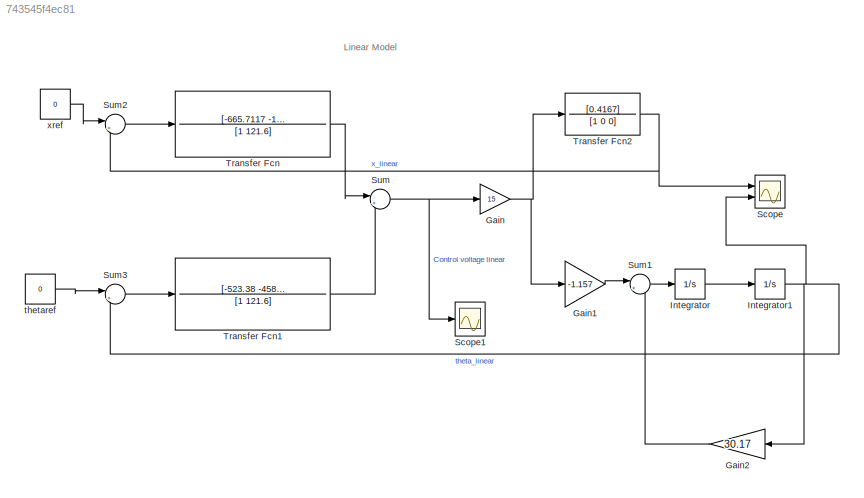
MODEL slx_743545f4ec81
KIND model
CONFIG AbsTol = auto
CONFIG EnableMultiTasking = off
CONFIG FixedStep = auto
CONFIG MaxStep = auto
CONFIG MinStep = auto
CONFIG RelTol = 1e-3
CONFIG SampleTimeConstraint = Unconstrained
CONFIG SolverName = VariableStepAuto
CONFIG StartTime = 0.0
CONFIG StopTime = 10.0
BLOCK [Gain] Gain
  Gain = 15
BLOCK [Gain] Gain1
  Gain = -1.157
BLOCK [Gain] Gain2
  Gain = 30.17
BLOCK [Integrator] Integrator
  Ports = [1, 1]
BLOCK [Integrator] Integrator1
  InitialCondition = 0.15
  Ports = [1, 1]
BLOCK [Scope] Scope
  Floating = off
  NumInputPorts = 2
  Ports = [2]
  ScopeSpecificationString = Simulink.scopes.TimeScopeBlockCfg('CurrentConfiguration', extmgr.ConfigurationSet(extmgr.Configuration('Core','General UI',true,'FigureColor',[1 1 1]),extmgr.Configuration('Core','Source UI',true),extmgr.Configuration('Sources','WiredSimulink',true,'DataLoggingVariableName','ScopeData1'),extmgr.Configuration('Visuals','Time Domain',true,'SerializedDisplays',{struct('MinYLimReal','-0.04104','MaxYLi...<+2217ch>
BLOCK [Scope] Scope1
  Floating = off
  NumInputPorts = 1
  Ports = [1]
  ScopeSpecificationString = Simulink.scopes.TimeScopeBlockCfg('CurrentConfiguration', extmgr.ConfigurationSet(extmgr.Configuration('Core','General UI',true,'FigureColor',[1 1 1]),extmgr.Configuration('Core','Source UI',true),extmgr.Configuration('Sources','WiredSimulink',true,'DataLoggingVariableName','ScopeData1'),extmgr.Configuration('Visuals','Time Domain',true,'SerializedDisplays',{struct('MinYLimReal','-25.86536','MaxYL...<+1802ch>
BLOCK [Sum] Sum
  Inputs = |++
  Ports = [2, 1]
BLOCK [Sum] Sum1
  Inputs = |++
  Ports = [2, 1]
BLOCK [Sum] Sum2
  Inputs = |+-
  Ports = [2, 1]
BLOCK [Sum] Sum3
  Inputs = |+-
  Ports = [2, 1]
BLOCK [TransferFcn] Transfer Fcn
  Denominator = [1 121.6]
  Numerator = [-665.7117 -1282]
BLOCK [TransferFcn] Transfer Fcn1
  Denominator = [1 121.6]
  Numerator = [-523.38 -4586.7]
BLOCK [TransferFcn] Transfer Fcn2
  Denominator = [1 0 0]
  Numerator = [0.4167]
BLOCK [Constant] thetaref
  Value = 0
BLOCK [Constant] xref
  Value = 0
ANNOTATION (root): Linear Model
LINE Gain1:1 -> Sum1:1
LINE Gain2:1 -> Sum1:2
NET Gain:1 -> Gain1:1, Transfer Fcn2:1
NET Integrator1:1 -> Gain2:1, Scope:2, Sum3:2
LINE Integrator:1 -> Integrator1:1
LINE Sum1:1 -> Integrator:1
LINE Sum2:1 -> Transfer Fcn:1
LINE Sum3:1 -> Transfer Fcn1:1
NET Sum:1 -> Gain:1, Scope1:1
LINE Transfer Fcn1:1 -> Sum:2
NET Transfer Fcn2:1 -> Scope:1, Sum2:2
LINE Transfer Fcn:1 -> Sum:1
LINE thetaref:1 -> Sum3:1
LINE xref:1 -> Sum2:1
note: NET lines group one-source signal fan-out (src -> all destinations, sorted); 1:1 wires keep LINE
